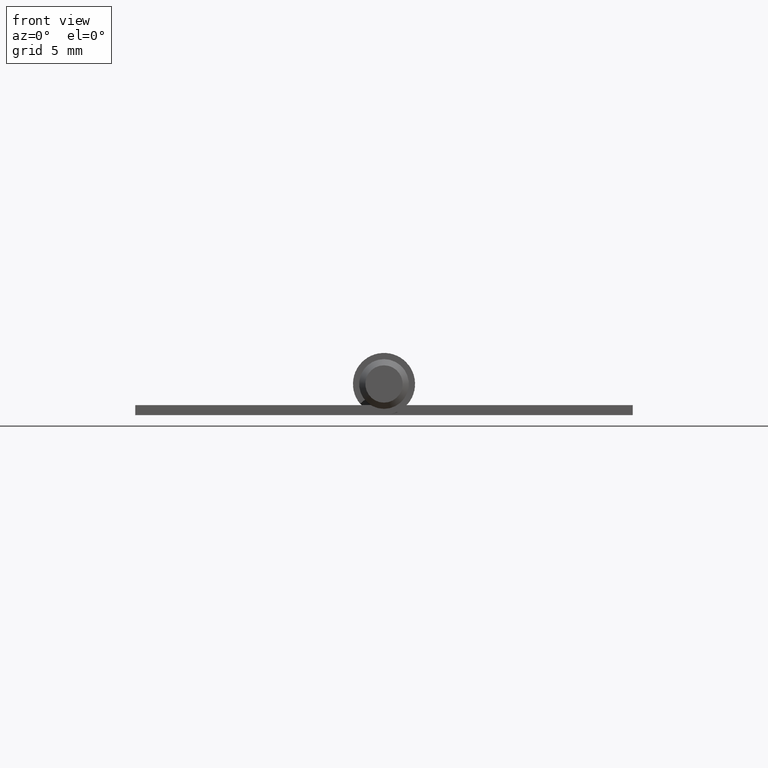
[diagram: clean part render]
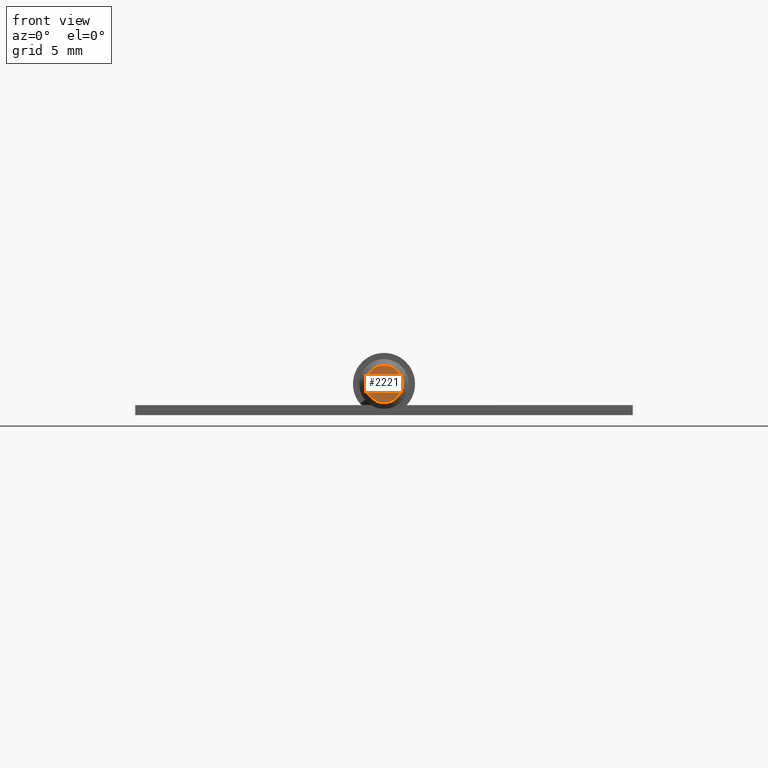
[diagram: same view with one face highlighted and labeled with its STEP entity id]
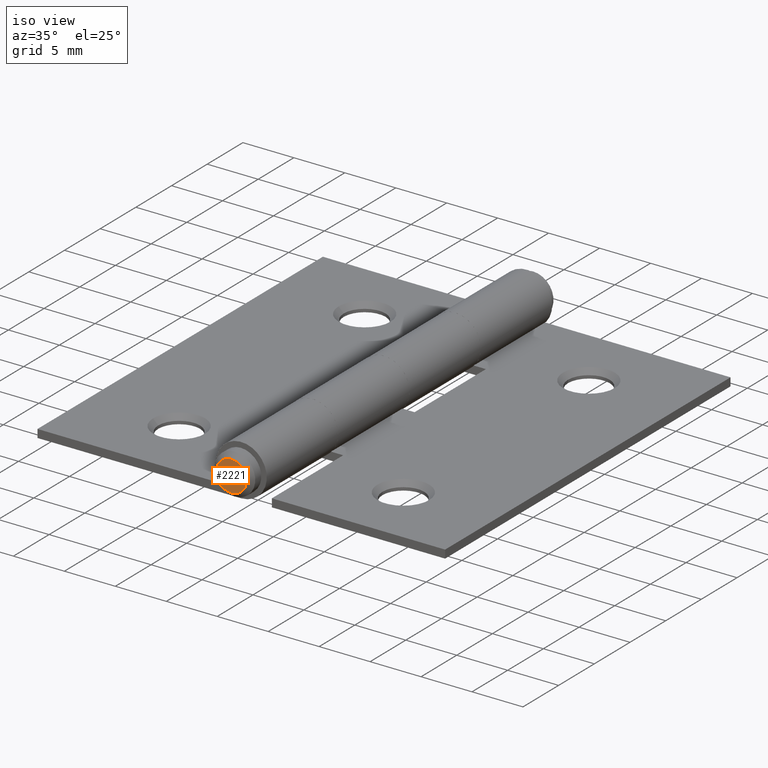
[diagram: same view with one face highlighted and labeled with its STEP entity id]
A machine part, front view. The second image highlights one B-rep face of the part: STEP entity #2221.
A second angle (iso view) of the same face is appended — the face is thin or edge-on in the first view.
In plain terms, the highlighted planar face has unit normal (0, -1, 0).
Its self-contained STEP definition (entity closure, byte-faithful):
#616 = VERTEX_POINT ( 'NONE', #8814 ) ;
#1368 = PLANE ( 'NONE',  #8531 ) ;
#1407 = AXIS2_PLACEMENT_3D ( 'NONE', #10408, #6348, #6389 ) ;
#1685 = ORIENTED_EDGE ( 'NONE', *, *, #9330, .T. ) ;
#2221 = ADVANCED_FACE ( 'NONE', ( #6526 ), #1368, .T. ) ;
#2430 = EDGE_LOOP ( 'NONE', ( #1685 ) ) ;
#3753 = DIRECTION ( 'NONE',  ( 0.000000000000000000, -1.000000000000000000, 0.000000000000000000 ) ) ;
#6348 = DIRECTION ( 'NONE',  ( 0.000000000000000000, -1.000000000000000000, 0.000000000000000000 ) ) ;
#6389 = DIRECTION ( 'NONE',  ( 0.000000000000000000, 0.000000000000000000, -1.000000000000000000 ) ) ;
#6526 = FACE_OUTER_BOUND ( 'NONE', #2430, .T. ) ;
#8531 = AXIS2_PLACEMENT_3D ( 'NONE', #8616, #3753, #8686 ) ;
#8616 = CARTESIAN_POINT ( 'NONE',  ( 0.000000000000000000, -21.40000000000000213, 0.000000000000000000 ) ) ;
#8686 = DIRECTION ( 'NONE',  ( 0.000000000000000000, 0.000000000000000000, 1.000000000000000000 ) ) ;
#8814 = CARTESIAN_POINT ( 'NONE',  ( 0.000000000000000000, -21.40000000000000213, -1.500000000000000000 ) ) ;
#9024 = CIRCLE ( 'NONE', #1407, 1.500000000000000000 ) ;
#9330 = EDGE_CURVE ( 'NONE', #616, #616, #9024, .T. ) ;
#10408 = CARTESIAN_POINT ( 'NONE',  ( 0.000000000000000000, -21.40000000000000213, 0.000000000000000000 ) ) ;